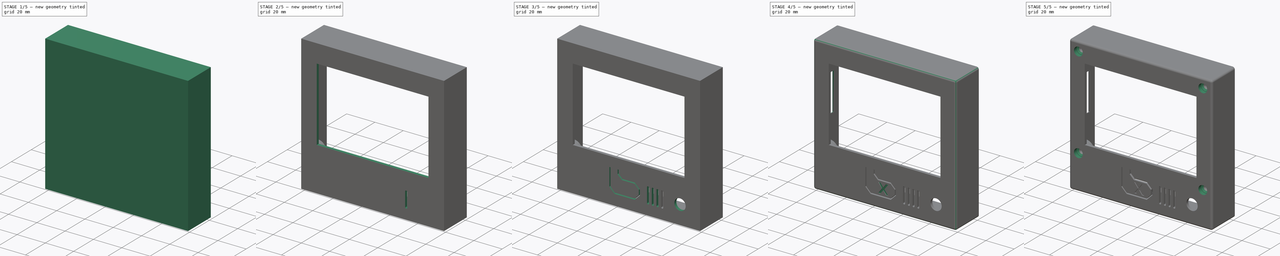
[diagram: build sequence overview — one tinted view per stage of 5, left to right]
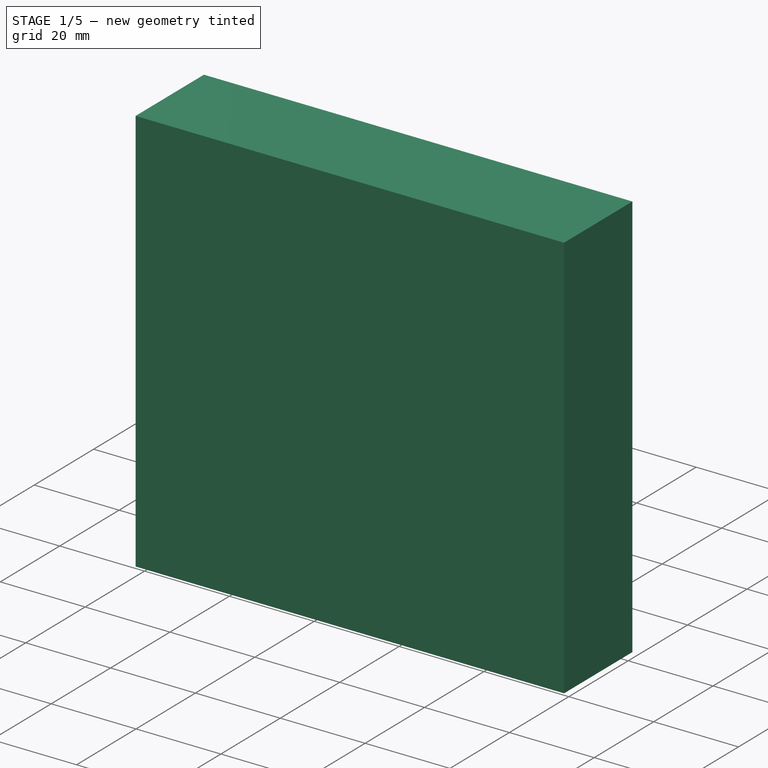
[diagram: stage 1 of 5 — iso view after this stage's code; geometry added in this stage tinted green]
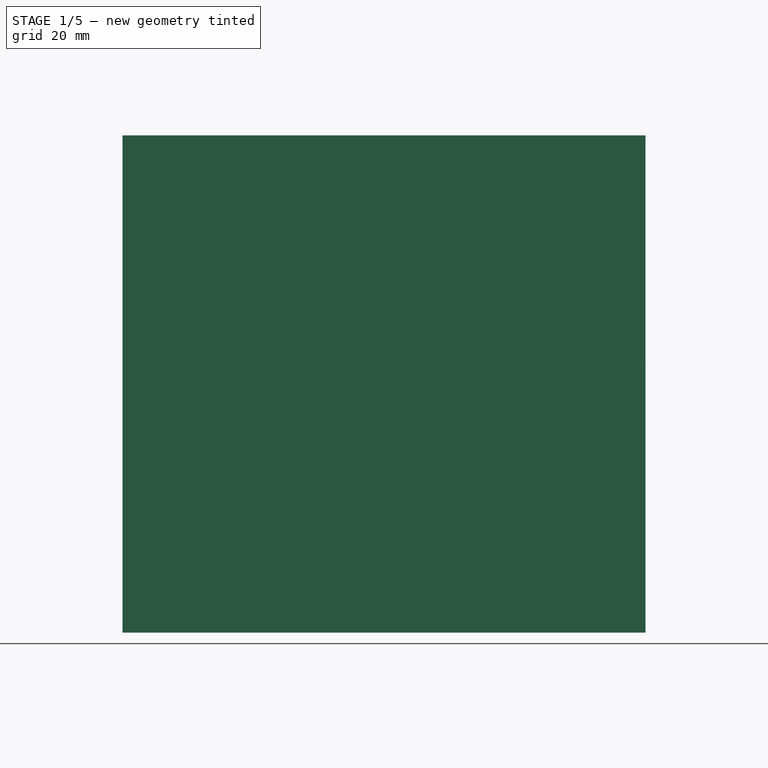
[diagram: stage 1 of 5 — front view after this stage's code; geometry added in this stage tinted green]
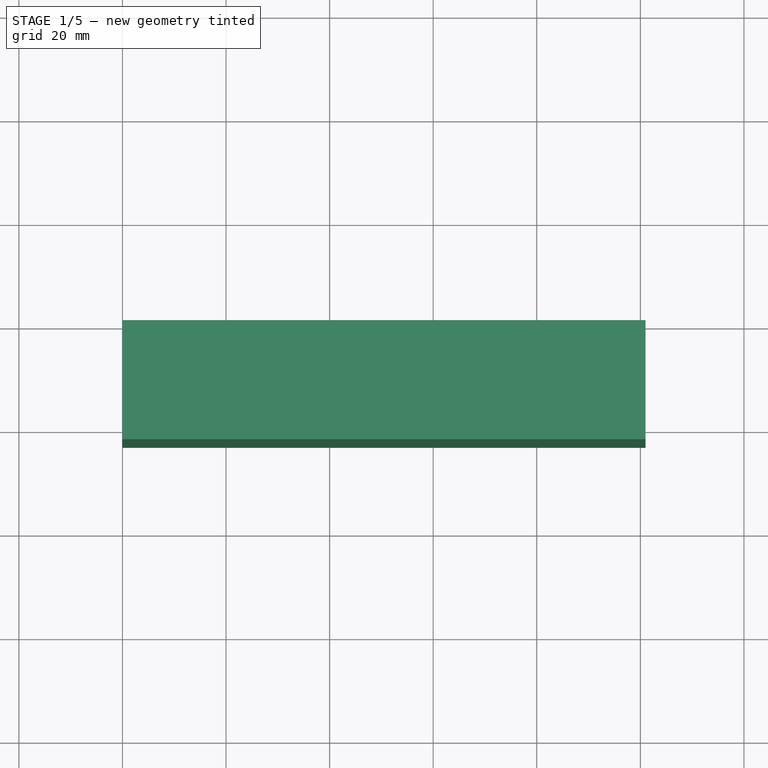
[diagram: stage 1 of 5 — top view after this stage's code; geometry added in this stage tinted green]
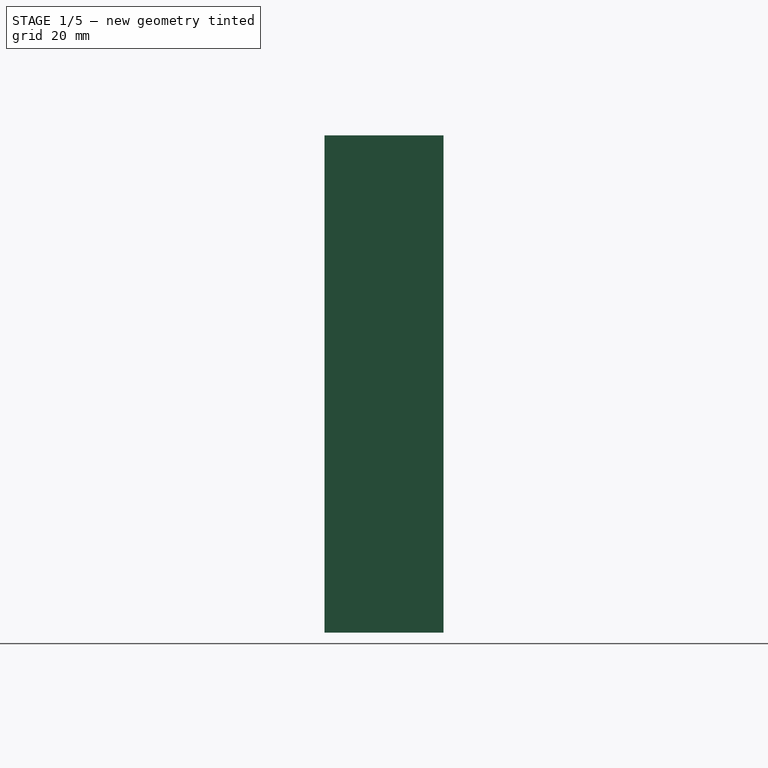
[diagram: stage 1 of 5 — right view after this stage's code; geometry added in this stage tinted green]
FCSTD DOCUMENT  (FreeCAD 0.17R13522 (Git))
Label: Corelia_0_LCD_case
License: All rights reserved
LicenseURL: http://en.wikipedia.org/wiki/All_rights_reserved
objects: Sketcher::SketchObject×14, PartDesign::Pocket×11, PartDesign::Chamfer×4, PartDesign::Pad×3, PartDesign::LinearPattern×1, PartDesign::Fillet×1, PartDesign::Body×1
note: 49 computed .brp shape members not serialized (recipe doc carries the construction recipe); baked Part::Feature solids carry a one-line shape summary decoded from their .brp

FEATURE [Sketcher::SketchObject] Sketch
  MapMode = 5
  Placement = pos=(0,0,0) rot=(1,0,0;1.5708rad)
  Support = -> [XZ_Plane]
  sketch-geometry (4):
    g0: LineSegment StartX=0 StartY=0 StartZ=0 EndX=101 EndY=0 EndZ=0
    g1: LineSegment StartX=101 StartY=0 StartZ=0 EndX=101 EndY=96 EndZ=0
    g2: LineSegment StartX=101 StartY=96 StartZ=0 EndX=0 EndY=96 EndZ=0
    g3: LineSegment StartX=0 StartY=96 StartZ=0 EndX=0 EndY=0 EndZ=0
  constraints (11):
    c: Coincident(g0,g1)
    c: Coincident(g1,g2)
    c: Coincident(g2,g3)
    c: Coincident(g3,g0)
    c: Horizontal(g0)
    c: Horizontal(g2)
    c: Vertical(g1)
    c: Vertical(g3)
    c: Coincident(g0,g-1)
    c: DistanceX(g2,g2) = 101
    c: DistanceY(g3,g3) = 96
FEATURE [PartDesign::Pad] Pad
  Length = 23
  Length2 = 100
  Placement = pos=(0,0,0) rot=(1,0,0;1.5708rad)
  Profile = -> Sketch
  Type = 0
FEATURE [Sketcher::SketchObject] Sketch001
  MapMode = 5
  Placement = pos=(0,0,0) rot=(-1,0,0;1.5708rad)
  Support = -> [Pad]
  sketch-geometry (4):
    g0: LineSegment StartX=2 StartY=-2 StartZ=0 EndX=99 EndY=-2 EndZ=0
    g1: LineSegment StartX=99 StartY=-2 StartZ=0 EndX=99 EndY=-94 EndZ=0
    g2: LineSegment StartX=99 StartY=-94 StartZ=0 EndX=2 EndY=-94 EndZ=0
    g3: LineSegment StartX=2 StartY=-94 StartZ=0 EndX=2 EndY=-2 EndZ=0
  constraints (12):
    c: Coincident(g0,g1)
    c: Coincident(g1,g2)
    c: Coincident(g2,g3)
    c: Coincident(g3,g0)
    c: Horizontal(g0)
    c: Horizontal(g2)
    c: Vertical(g1)
    c: Vertical(g3)
    c: DistanceX(g0,g0) = 97
    c: DistanceY(g3,g3) = 92
    c: DistanceX(g0) = 2
    c: DistanceY(g0) = -2
FEATURE [PartDesign::Pocket] Pocket
  BaseFeature = -> Pad
  Length = 21
  Length2 = 100
  Placement = pos=(0,0,0) rot=(1,0,0;1.5708rad)
  Profile = -> Sketch001
  Type = 0
FEATURE [Sketcher::SketchObject] Sketch002
  MapMode = 5
  Placement = pos=(0,-21,-2e-12) rot=(-1,0,0;1.5708rad)
  Support = -> [Pocket]
  sketch-geometry (8):
    g0: LineSegment [constr] StartX=94.5 StartY=-89.5 StartZ=0 EndX=6.5 EndY=-89.5 EndZ=0
    g1: LineSegment [constr] StartX=6.5 StartY=-89.5 StartZ=0 EndX=6.5 EndY=-24.5 EndZ=0
    g2: LineSegment [constr] StartX=6.5 StartY=-24.5 StartZ=0 EndX=94.5 EndY=-24.5 EndZ=0
    g3: LineSegment [constr] StartX=94.5 StartY=-24.5 StartZ=0 EndX=94.5 EndY=-89.5 EndZ=0
    g4: Circle CenterX=94.5 CenterY=-89.5 CenterZ=0 NormalX=0 NormalY=0 NormalZ=1 AngleXU=0 Radius=6
    g5: Circle CenterX=94.5 CenterY=-24.5 CenterZ=0 NormalX=0 NormalY=0 NormalZ=1 AngleXU=0 Radius=6
    g6: Circle CenterX=6.5 CenterY=-24.5 CenterZ=0 NormalX=0 NormalY=0 NormalZ=1 AngleXU=0 Radius=6
    g7: Circle CenterX=6.5 CenterY=-89.5 CenterZ=0 NormalX=0 NormalY=0 NormalZ=1 AngleXU=0 Radius=6
  constraints (20):
    c: Coincident(g0,g1)
    c: Coincident(g1,g2)
    c: Coincident(g2,g3)
    c: Coincident(g3,g0)
    c: Horizontal(g0)
    c: Horizontal(g2)
    c: Vertical(g1)
    c: Vertical(g3)
    c: DistanceX(g0,g0) = 88
    c: DistanceY(g3,g3) = 65
    c: Coincident(g5,g2)
    c: Equal(g4,g7)
    c: Equal(g7,g6)
    c: Equal(g6,g5)
    c: Radius(g4) = 6
    c: DistanceX(g1) = 6.5
    c: DistanceY(g1) = -24.5
    c: Coincident(g4,g0)
    c: Coincident(g7,g0)
    c: Coincident(g1,g6)
FEATURE [PartDesign::Pad] Pad001
  BaseFeature = -> Pocket
  Length = 5.6
  Length2 = 100
  Placement = pos=(0,0,0) rot=(1,0,0;1.5708rad)
  Profile = -> Sketch002
  Type = 0
FEATURE [Sketcher::SketchObject] Sketch003
  MapMode = 5
  Placement = pos=(0,-15.4,-2e-12) rot=(-1,0,0;1.5708rad)
  Support = -> [Pad001]
  sketch-geometry (8):
    g0: LineSegment [constr] StartX=6.5 StartY=-24.5 StartZ=0 EndX=94.5 EndY=-24.5 EndZ=0
    g1: LineSegment [constr] StartX=94.5 StartY=-24.5 StartZ=0 EndX=94.5 EndY=-89.5 EndZ=0
    g2: LineSegment [constr] StartX=94.5 StartY=-89.5 StartZ=0 EndX=6.5 EndY=-89.5 EndZ=0
    g3: LineSegment [constr] StartX=6.5 StartY=-89.5 StartZ=0 EndX=6.5 EndY=-24.5 EndZ=0
    g4: Circle CenterX=6.5 CenterY=-24.5 CenterZ=0 NormalX=0 NormalY=0 NormalZ=1 AngleXU=0 Radius=1.6
    g5: Circle CenterX=94.5 CenterY=-24.5 CenterZ=0 NormalX=0 NormalY=0 NormalZ=1 AngleXU=0 Radius=1.6
    g6: Circle CenterX=6.5 CenterY=-89.5 CenterZ=0 NormalX=0 NormalY=0 NormalZ=1 AngleXU=0 Radius=1.6
    g7: Circle CenterX=94.5 CenterY=-89.5 CenterZ=0 NormalX=0 NormalY=0 NormalZ=1 AngleXU=0 Radius=1.6
  constraints (20):
    c: Coincident(g0,g1)
    c: Coincident(g1,g2)
    c: Coincident(g2,g3)
    c: Coincident(g3,g0)
    c: Horizontal(g0)
    c: Horizontal(g2)
    c: Vertical(g1)
    c: Vertical(g3)
    c: Coincident(g4,g0)
    c: Coincident(g5,g0)
    c: Coincident(g6,g2)
    c: Coincident(g7,g1)
    c: Equal(g6,g4)
    c: Equal(g4,g5)
    c: Equal(g5,g7)
    c: Radius(g4) = 1.6
    c: DistanceX(g0) = 6.5
    c: DistanceY(g0) = -24.5
    c: DistanceY(g3,g3) = 65
    c: DistanceX(g2,g2) = 88
FEATURE [PartDesign::Pocket] Pocket001
  BaseFeature = -> Pad001
  Length = 7
  Length2 = 100
  Placement = pos=(0,0,0) rot=(1,0,0;1.5708rad)
  Profile = -> Sketch003
  Type = 0
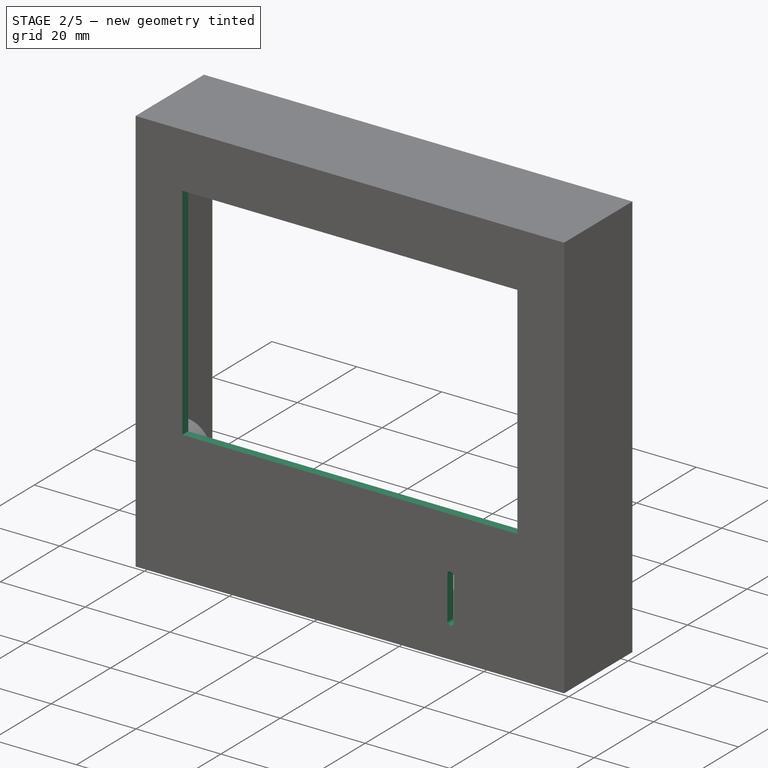
[diagram: stage 2 of 5 — iso view after this stage's code; geometry added in this stage tinted green]
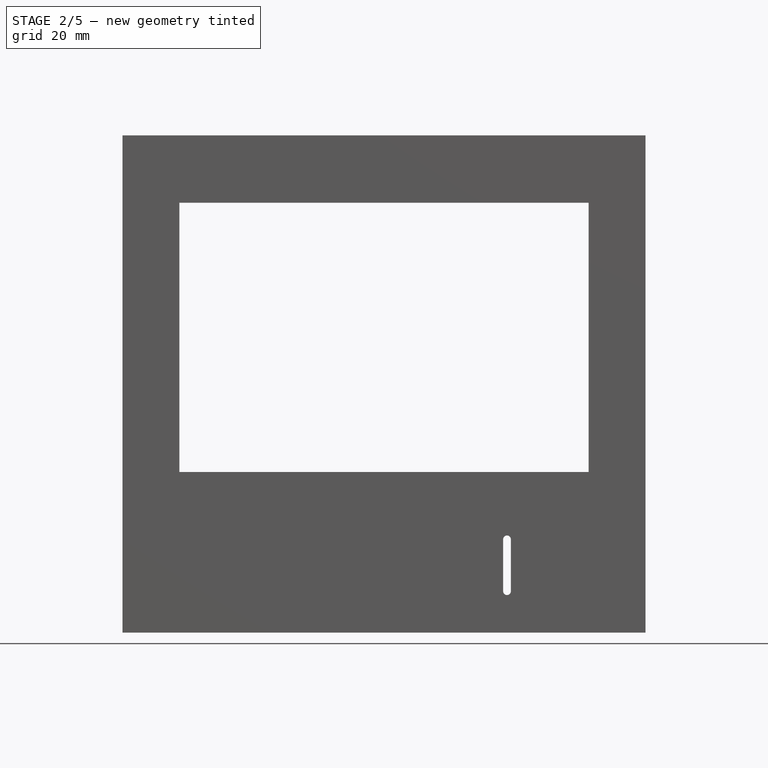
[diagram: stage 2 of 5 — front view after this stage's code; geometry added in this stage tinted green]
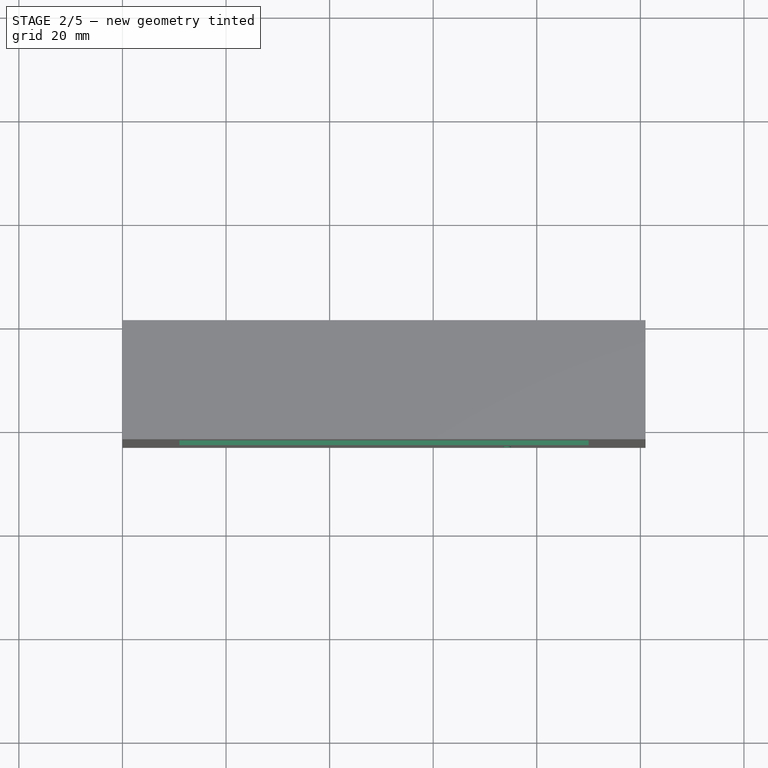
[diagram: stage 2 of 5 — top view after this stage's code; geometry added in this stage tinted green]
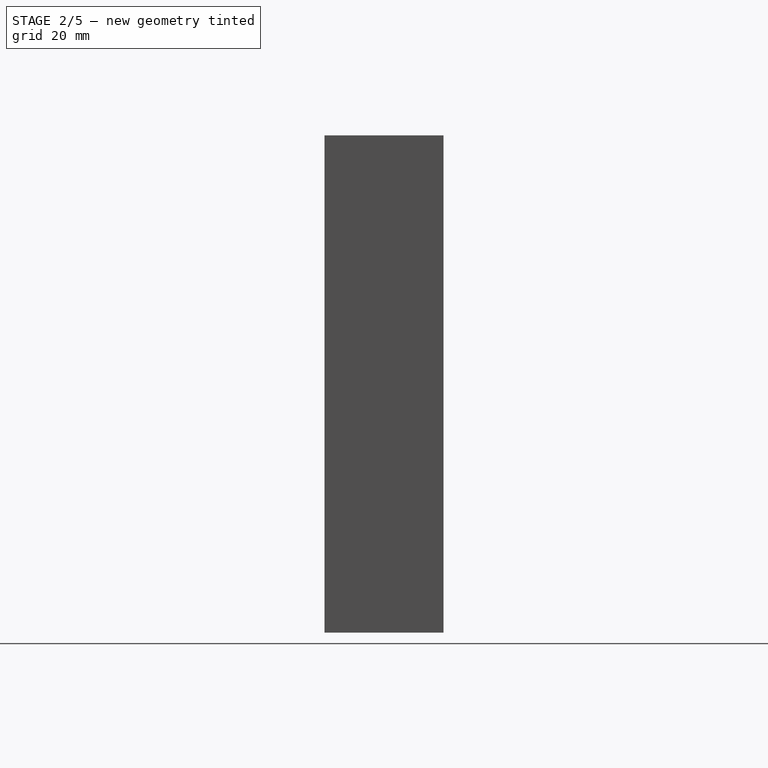
[diagram: stage 2 of 5 — right view after this stage's code; geometry added in this stage tinted green]
FEATURE [Sketcher::SketchObject] Sketch004
  MapMode = 5
  Placement = pos=(0,-15.4,-2e-12) rot=(-1,0,0;1.5708rad)
  Support = -> [Pocket001]
  sketch-geometry (8):
    g0: Circle CenterX=6.5 CenterY=-24.5 CenterZ=0 NormalX=0 NormalY=0 NormalZ=1 AngleXU=0 Radius=1.6
    g1: Circle CenterX=94.5 CenterY=-24.5 CenterZ=0 NormalX=0 NormalY=0 NormalZ=1 AngleXU=0 Radius=1.6
    g2: Circle CenterX=94.5 CenterY=-89.5 CenterZ=0 NormalX=0 NormalY=0 NormalZ=1 AngleXU=0 Radius=1.6
    g3: Circle CenterX=6.5 CenterY=-89.5 CenterZ=0 NormalX=0 NormalY=0 NormalZ=1 AngleXU=0 Radius=1.6
    g4: LineSegment [constr] StartX=6.5 StartY=-24.5 StartZ=0 EndX=6.5 EndY=-89.5 EndZ=0
    g5: LineSegment [constr] StartX=6.5 StartY=-89.5 StartZ=0 EndX=94.5 EndY=-89.5 EndZ=0
    g6: LineSegment [constr] StartX=94.5 StartY=-89.5 StartZ=0 EndX=94.5 EndY=-24.5 EndZ=0
    g7: LineSegment [constr] StartX=94.5 StartY=-24.5 StartZ=0 EndX=6.5 EndY=-24.5 EndZ=0
  constraints (20):
    c: Equal(g0,g1)
    c: Equal(g1,g2)
    c: Radius(g0) = 1.6
    c: Equal(g0,g3)
    c: DistanceX(g0) = 6.5
    c: DistanceY(g0) = -24.5
    c: Coincident(g4,g0)
    c: Coincident(g4,g3)
    c: Vertical(g4)
    c: Coincident(g5,g3)
    c: Coincident(g5,g2)
    c: Horizontal(g5)
    c: Coincident(g6,g2)
    c: Coincident(g6,g1)
    c: Vertical(g6)
    c: Coincident(g7,g1)
    c: Coincident(g7,g0)
    c: Horizontal(g7)
    c: DistanceY(g4,g4) = 65
    c: DistanceX(g5,g5) = 88
FEATURE [PartDesign::Pocket] Pocket002
  BaseFeature = -> Pocket001
  Length = 5
  Length2 = 100
  Placement = pos=(0,0,0) rot=(1,0,0;1.5708rad)
  Profile = -> Sketch004
  Type = 0
FEATURE [Sketcher::SketchObject] Sketch005
  MapMode = 5
  Placement = pos=(0,-23,-2e-12) rot=(1,0,0;1.5708rad)
  Support = -> [Pocket002]
  sketch-geometry (4):
    g0: LineSegment StartX=11 StartY=83 StartZ=0 EndX=90 EndY=83 EndZ=0
    g1: LineSegment StartX=90 StartY=83 StartZ=0 EndX=90 EndY=31 EndZ=0
    g2: LineSegment StartX=90 StartY=31 StartZ=0 EndX=11 EndY=31 EndZ=0
    g3: LineSegment StartX=11 StartY=31 StartZ=0 EndX=11 EndY=83 EndZ=0
  constraints (12):
    c: Coincident(g0,g1)
    c: Coincident(g1,g2)
    c: Coincident(g2,g3)
    c: Coincident(g3,g0)
    c: Horizontal(g0)
    c: Horizontal(g2)
    c: Vertical(g1)
    c: Vertical(g3)
    c: DistanceX(g2) = 11
    c: DistanceY(g2) = 31
    c: DistanceX(g0,g0) = 79
    c: DistanceY(g3,g3) = 52
FEATURE [PartDesign::Pocket] Pocket003
  BaseFeature = -> Pocket002
  Length = 5
  Length2 = 100
  Placement = pos=(0,0,0) rot=(1,0,0;1.5708rad)
  Profile = -> Sketch005
  Type = 1
FEATURE [Sketcher::SketchObject] Sketch006
  MapMode = 5
  Placement = pos=(0,-21,-2e-12) rot=(-1,0,0;1.5708rad)
  Support = -> [Pocket003]
  sketch-geometry (1):
    g0: Circle CenterX=53 CenterY=-13.15 CenterZ=0 NormalX=0 NormalY=0 NormalZ=1 AngleXU=0 Radius=3
  constraints (3):
    c: Radius(g0) = 3
    c: DistanceX(g0) = 53
    c: DistanceY(g0) = -13.15
FEATURE [PartDesign::Pad] Pad002
  BaseFeature = -> Pocket003
  Length = 6
  Length2 = 100
  Placement = pos=(0,0,0) rot=(1,0,0;1.5708rad)
  Profile = -> Sketch006
  Type = 0
FEATURE [Sketcher::SketchObject] Sketch007
  MapMode = 5
  Placement = pos=(0,-21,-2e-12) rot=(-1,0,0;1.5708rad)
  Support = -> [Pad002]
  sketch-geometry (4):
    g0: ArcOfCircle CenterX=74.25 CenterY=-8 CenterZ=0 NormalX=0 NormalY=0 NormalZ=1 AngleXU=0 Radius=0.75 StartAngle=0 EndAngle=3.14159
    g1: ArcOfCircle CenterX=74.25 CenterY=-18 CenterZ=0 NormalX=0 NormalY=0 NormalZ=1 AngleXU=0 Radius=0.75 StartAngle=3.14159 EndAngle=6.28319
    g2: LineSegment StartX=73.5 StartY=-8 StartZ=0 EndX=73.5 EndY=-18 EndZ=0
    g3: LineSegment StartX=75 StartY=-8 StartZ=0 EndX=75 EndY=-18 EndZ=0
  constraints (10):
    c: Tangent(g0,g3) = 1.5708
    c: Tangent(g0,g2) = -1.5708
    c: Tangent(g2,g1) = -1.5708
    c: Tangent(g3,g1) = 1.5708
    c: Vertical(g2)
    c: Equal(g0,g1)
    c: DistanceY(g2,g2) = 10
    c: Radius(g0) = 0.75
    c: DistanceY(g0) = -8
    c: DistanceX(g0) = 75
FEATURE [PartDesign::Pocket] Pocket004
  BaseFeature = -> Pad002
  Length = 5
  Length2 = 100
  Placement = pos=(0,0,0) rot=(1,0,0;1.5708rad)
  Profile = -> Sketch007
  Type = 1
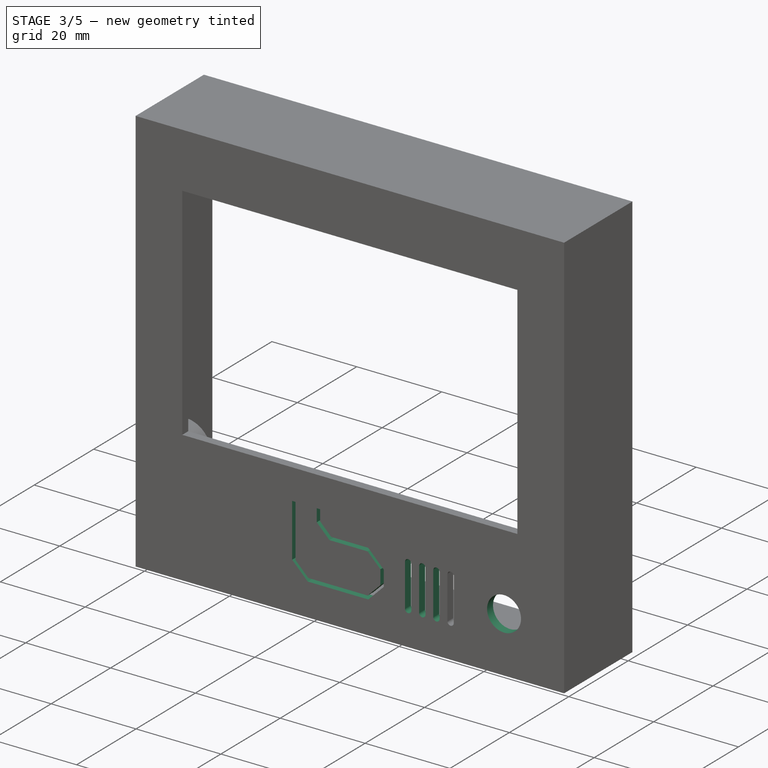
[diagram: stage 3 of 5 — iso view after this stage's code; geometry added in this stage tinted green]
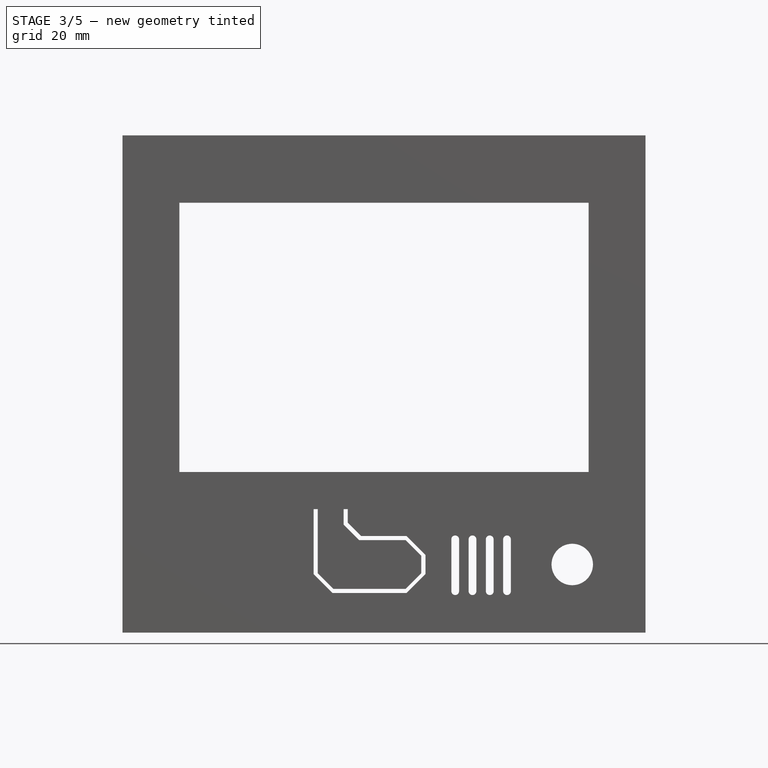
[diagram: stage 3 of 5 — front view after this stage's code; geometry added in this stage tinted green]
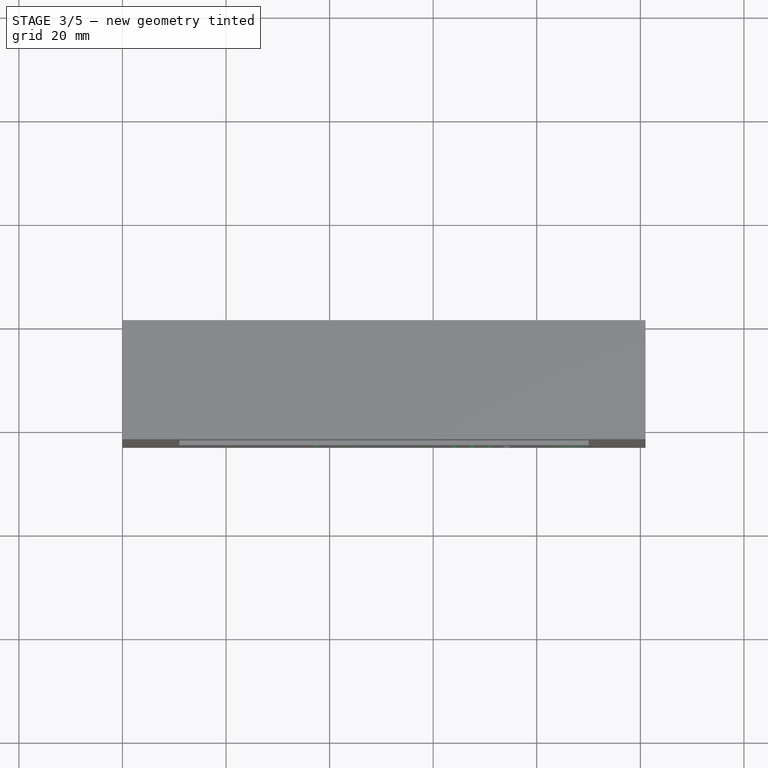
[diagram: stage 3 of 5 — top view after this stage's code; geometry added in this stage tinted green]
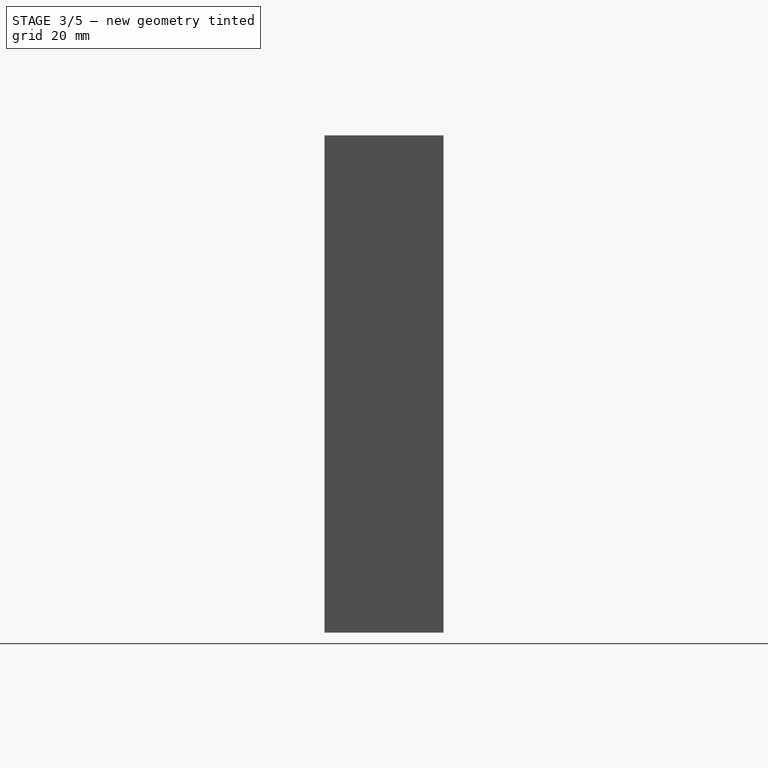
[diagram: stage 3 of 5 — right view after this stage's code; geometry added in this stage tinted green]
FEATURE [PartDesign::LinearPattern] LinearPattern
  BaseFeature = -> Pocket004
  Direction = -> Sketch007 [H_Axis]
  Length = 10
  Occurrences = 4
  Originals = -> [Pocket004]
  Placement = pos=(0,0,0) rot=(1,0,0;1.5708rad)
  Reversed = true
FEATURE [Sketcher::SketchObject] Sketch008
  MapMode = 5
  Placement = pos=(0,-21,-2e-12) rot=(-1,0,0;1.5708rad)
  Support = -> [LinearPattern]
  sketch-geometry (1):
    g0: Circle CenterX=86.85 CenterY=-13.15 CenterZ=0 NormalX=0 NormalY=0 NormalZ=1 AngleXU=0 Radius=4
  constraints (3):
    c: Radius(g0) = 4
    c: DistanceX(g0) = 86.85
    c: DistanceY(g0) = -13.15
FEATURE [PartDesign::Pocket] Pocket005
  BaseFeature = -> LinearPattern
  Length = 5
  Length2 = 100
  Placement = pos=(0,0,0) rot=(1,0,0;1.5708rad)
  Profile = -> Sketch008
  Type = 1
FEATURE [Sketcher::SketchObject] Sketch009
  ExternalGeometry = -> [Pocket005]
  MapMode = 5
  Placement = pos=(0,-21,-2e-12) rot=(-1,0,0;1.5708rad)
  Support = -> [Pocket005]
  sketch-geometry (22):
    g0: LineSegment StartX=57.7016 StartY=-14.8516 StartZ=0 EndX=57.7016 EndY=-11.4484 EndZ=0
    g1: LineSegment StartX=57.7016 StartY=-11.4484 StartZ=0 EndX=54.7016 EndY=-8.44844 EndZ=0
    g2: LineSegment StartX=54.7016 StartY=-8.44844 StartZ=0 EndX=40.7016 EndY=-8.44844 EndZ=0
    g3: LineSegment StartX=40.7016 StartY=-8.44844 StartZ=0 EndX=37.7016 EndY=-11.4484 EndZ=0
    g4: LineSegment StartX=37.7016 StartY=-11.4484 StartZ=0 EndX=37.7016 EndY=-23.8516 EndZ=0
    g5: LineSegment StartX=42.7016 StartY=-23.8516 StartZ=0 EndX=42.7016 EndY=-20.8516 EndZ=0
    g6: LineSegment StartX=42.7016 StartY=-20.8516 StartZ=0 EndX=45.7016 EndY=-17.8516 EndZ=0
    g7: LineSegment StartX=45.7016 StartY=-17.8516 StartZ=0 EndX=54.7016 EndY=-17.8516 EndZ=0
    g8: LineSegment StartX=54.7016 StartY=-17.8516 StartZ=0 EndX=57.7016 EndY=-14.8516 EndZ=0
    g9: Circle [constr] CenterX=53 CenterY=-13.15 CenterZ=0 NormalX=0 NormalY=0 NormalZ=1 AngleXU=0 Radius=5
    g10: LineSegment StartX=37.7016 StartY=-23.8516 StartZ=0 EndX=36.9016 EndY=-23.8516 EndZ=0
    g11: LineSegment StartX=36.9016 StartY=-23.8516 StartZ=0 EndX=36.9016 EndY=-11.3184 EndZ=0
    g12: LineSegment StartX=36.9016 StartY=-11.3184 StartZ=0 EndX=40.5716 EndY=-7.64844 EndZ=0
    g13: LineSegment StartX=40.5716 StartY=-7.64844 StartZ=0 EndX=54.8365 EndY=-7.64844 EndZ=0
    g14: LineSegment StartX=54.8365 StartY=-7.64844 StartZ=0 EndX=58.5016 EndY=-11.3135 EndZ=0
    g15: LineSegment StartX=58.5016 StartY=-11.3135 StartZ=0 EndX=58.5016 EndY=-14.9865 EndZ=0
    g16: LineSegment StartX=58.5016 StartY=-14.9865 StartZ=0 EndX=54.8365 EndY=-18.6516 EndZ=0
    g17: LineSegment StartX=54.8365 StartY=-18.6516 StartZ=0 EndX=46.1016 EndY=-18.6516 EndZ=0
    g18: LineSegment StartX=46.1016 StartY=-18.6516 StartZ=0 EndX=43.5016 EndY=-21.2516 EndZ=0
    g19: LineSegment StartX=43.5016 StartY=-21.2516 StartZ=0 EndX=43.5016 EndY=-23.8516 EndZ=0
    g20: LineSegment StartX=43.5016 StartY=-23.8516 StartZ=0 EndX=42.7016 EndY=-23.8516 EndZ=0
    g21: Circle [constr] CenterX=53 CenterY=-13.15 CenterZ=0 NormalX=0 NormalY=0 NormalZ=1 AngleXU=0 Radius=5.8
  constraints (66):
    c: Vertical(g0)
    c: Coincident(g0,g1)
    c: Coincident(g1,g2)
    c: Horizontal(g2)
    c: Coincident(g2,g3)
    c: Coincident(g3,g4)
    c: Vertical(g4)
    c: Coincident(g5,g6)
    c: Coincident(g6,g7)
    c: Coincident(g7,g8)
    c: Coincident(g8,g0)
    c: Vertical(g5)
    c: Horizontal(g7)
    c: Equal(g8,g1)
    c: Equal(g1,g6)
    c: Equal(g6,g3)
    c: Angle(g5,g6) = 2.35619
    c: Angle(g8,g7) = 2.35619
    c: Angle(g2,g1) = 2.35619
    c: Angle(g3,g2) = 2.35619
    c: DistanceX(g4,g5) = 5
    c: DistanceY(g5,g5) = 3
    c: DistanceX(g5,g6) = 3
    c: DistanceX(g3,g0) = 20
    c: Coincident(g9,g-3)
    c: PointOnObject(g7,g9)
    c: Radius(g9) = 5
    c: PointOnObject(g1,g9)
    c: PointOnObject(g0,g9)
    c: Coincident(g4,g10)
    c: Horizontal(g10)
    c: Coincident(g10,g11)
    c: Vertical(g11)
    c: Coincident(g11,g12)
    c: Coincident(g12,g13)
    c: Horizontal(g13)
    c: Coincident(g13,g14)
    c: Coincident(g14,g15)
    c: Vertical(g15)
    c: Coincident(g15,g16)
    c: Coincident(g16,g17)
    c: Horizontal(g17)
    c: Coincident(g17,g18)
    c: Coincident(g18,g19)
    c: Coincident(g19,g20)
    c: Coincident(g20,g5)
    c: Horizontal(g20)
    c: Vertical(g19)
    c: Equal(g10,g20)
    c: DistanceX(g10,g10) = 0.8
    c: DistanceY(g17,g6) = 0.8
    c: DistanceX(g0,g15) = 0.8
    c: DistanceY(g1,g13) = 0.8
    c: Parallel(g3,g12)
    c: Parallel(g1,g14)
    c: Parallel(g16,g8)
    c: Parallel(g18,g6)
    c: Coincident(g21,g9)
    c: Radius(g21) = 5.8
    c: PointOnObject(g16,g21)
    c: PointOnObject(g15,g21)
    c: PointOnObject(g14,g21)
    c: PointOnObject(g13,g21)
    c: DistanceY(g19,g19) = 2.6
    c: DistanceY(g11,g12) = 3.67
    c: PointOnObject(g4,g20)
FEATURE [PartDesign::Pocket] Pocket006
  BaseFeature = -> Pocket005
  Length = 5
  Length2 = 100
  Placement = pos=(0,0,0) rot=(1,0,0;1.5708rad)
  Profile = -> Sketch009
  Type = 1
FEATURE [Sketcher::SketchObject] Sketch010
  MapMode = 5
  Placement = pos=(0,-21,-2e-12) rot=(-1,0,0;1.5708rad)
  Support = -> [Pocket006]
  sketch-geometry (11):
    g0: LineSegment StartX=42.7016 StartY=-23.8516 StartZ=0 EndX=37.7016 EndY=-23.8516 EndZ=0
    g1: LineSegment StartX=37.7016 StartY=-11.4484 StartZ=0 EndX=40.7329 EndY=-8.47023 EndZ=0
    g2: LineSegment StartX=54.7016 StartY=-8.47023 StartZ=0 EndX=57.7016 EndY=-11.4484 EndZ=0
    g3: LineSegment StartX=57.7016 StartY=-14.8516 StartZ=0 EndX=54.7016 EndY=-17.8516 EndZ=0
    g4: LineSegment StartX=45.7016 StartY=-17.8516 StartZ=0 EndX=42.7016 EndY=-20.8516 EndZ=0
    g5: LineSegment StartX=37.7016 StartY=-23.8516 StartZ=0 EndX=37.7016 EndY=-11.4484 EndZ=0
    g6: LineSegment StartX=40.7329 StartY=-8.47023 StartZ=0 EndX=54.7016 EndY=-8.47023 EndZ=0
    g7: LineSegment StartX=54.7016 StartY=-17.8516 StartZ=0 EndX=45.7016 EndY=-17.8516 EndZ=0
    g8: LineSegment StartX=42.7016 StartY=-20.8516 StartZ=0 EndX=42.7016 EndY=-23.8516 EndZ=0
    g9: Circle CenterX=53 CenterY=-13.15 CenterZ=0 NormalX=0 NormalY=0 NormalZ=1 AngleXU=0 Radius=3
    g10: LineSegment StartX=57.7016 StartY=-11.4484 StartZ=0 EndX=57.7016 EndY=-14.8516 EndZ=0
  constraints (16):
    c: Coincident(g5,g0)
    c: Coincident(g5,g1)
    c: Vertical(g5)
    c: Coincident(g6,g1)
    c: Coincident(g6,g2)
    c: Horizontal(g6)
    c: Coincident(g7,g3)
    c: Coincident(g7,g4)
    c: Horizontal(g7)
    c: Coincident(g8,g4)
    c: Coincident(g8,g0)
    c: Vertical(g8)
    c: Coincident(g10,g3)
    c: Vertical(g10)
    c: Radius(g9) = 3
    c: Coincident(g2,g10)
FEATURE [PartDesign::Pocket] Pocket007
  BaseFeature = -> Pocket006
  Length = 0.5
  Length2 = 100
  Placement = pos=(0,0,0) rot=(1,0,0;1.5708rad)
  Profile = -> Sketch010
  Type = 0
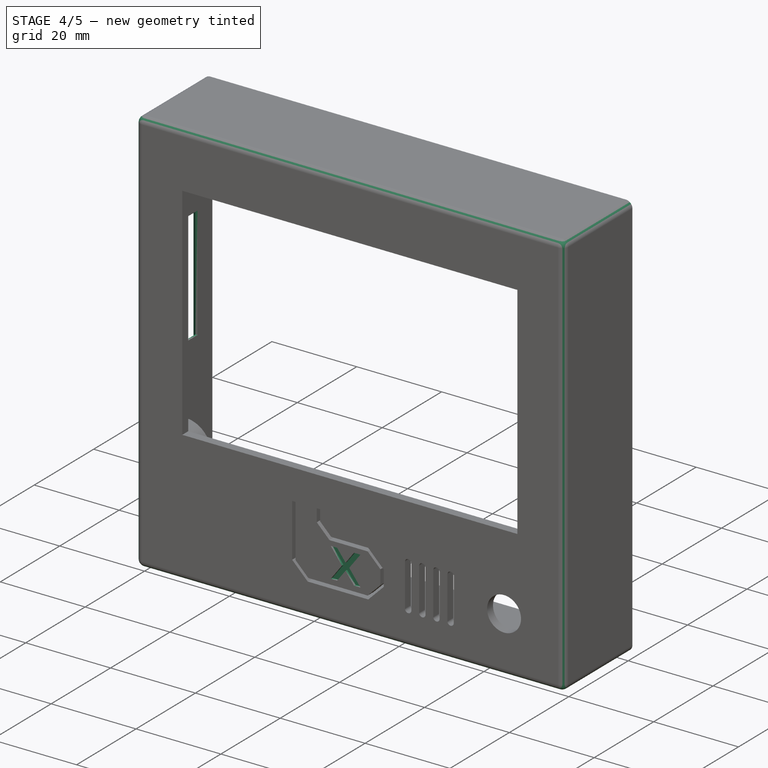
[diagram: stage 4 of 5 — iso view after this stage's code; geometry added in this stage tinted green]
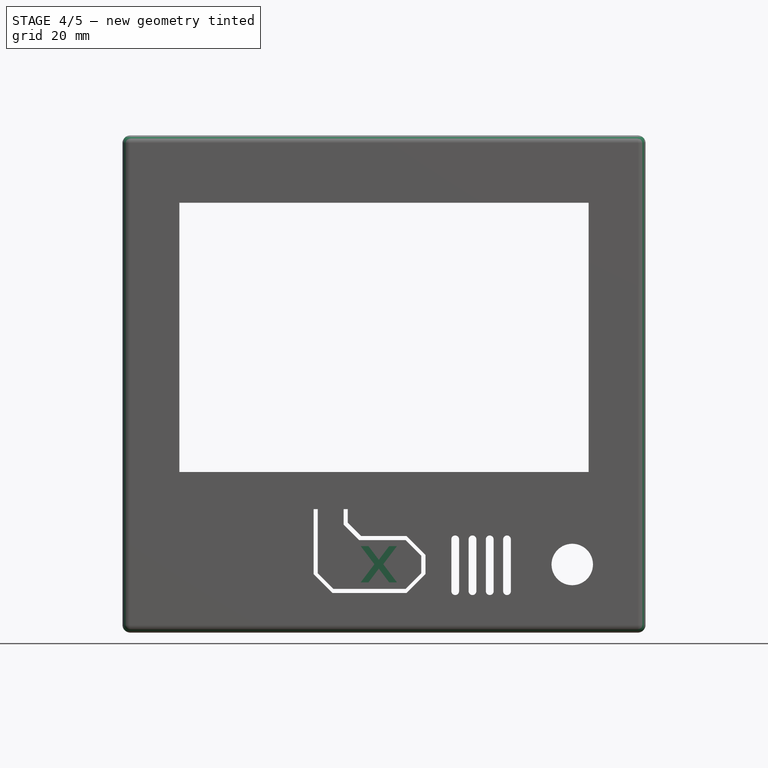
[diagram: stage 4 of 5 — front view after this stage's code; geometry added in this stage tinted green]
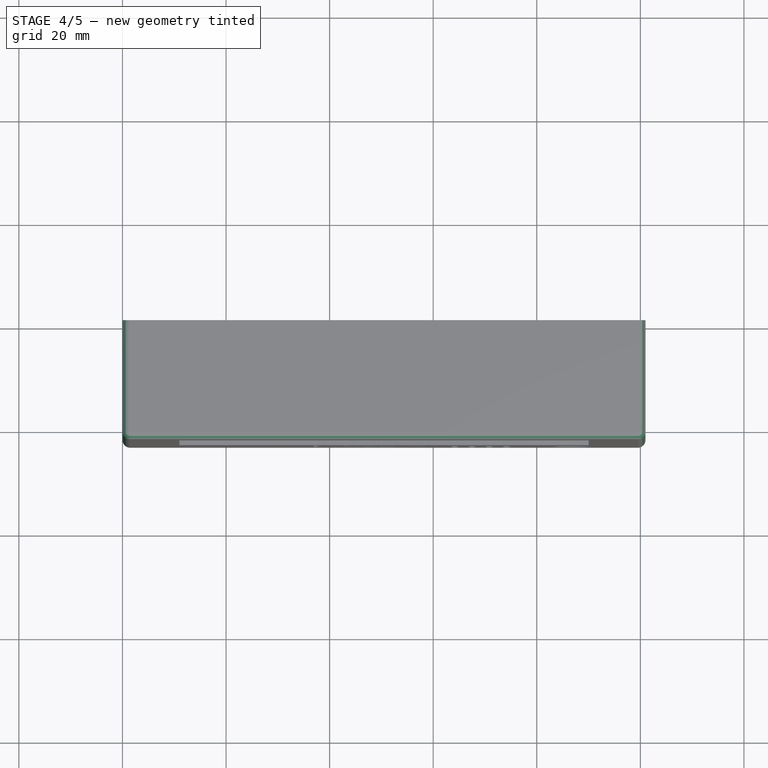
[diagram: stage 4 of 5 — top view after this stage's code; geometry added in this stage tinted green]
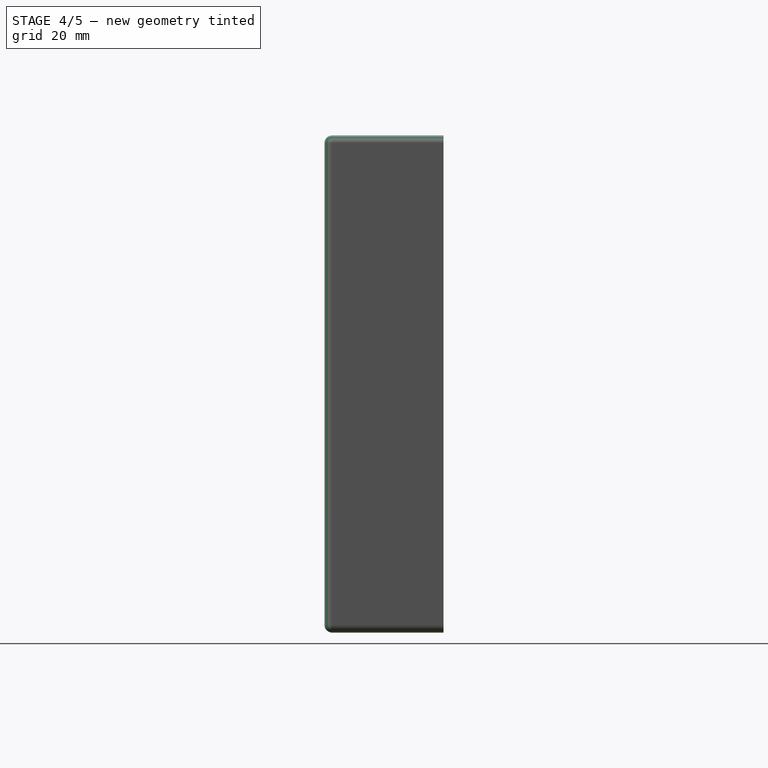
[diagram: stage 4 of 5 — right view after this stage's code; geometry added in this stage tinted green]
FEATURE [Sketcher::SketchObject] Sketch011
  MapMode = 5
  Placement = pos=(0,-23,-2e-12) rot=(1,0,0;1.5708rad)
  Support = -> [Pocket007]
  sketch-geometry (15):
    g0: LineSegment StartX=46 StartY=16.7 StartZ=0 EndX=47.5 EndY=16.7 EndZ=0
    g1: LineSegment StartX=47.5 StartY=16.7 StartZ=0 EndX=49.5 EndY=14.0542 EndZ=0
    g2: LineSegment StartX=49.5 StartY=14.0542 StartZ=0 EndX=51.5 EndY=16.7 EndZ=0
    g3: LineSegment StartX=51.5 StartY=16.7 StartZ=0 EndX=53 EndY=16.7 EndZ=0
    g4: LineSegment StartX=53 StartY=16.7 StartZ=0 EndX=50.3542 EndY=13.2 EndZ=0
    g5: LineSegment StartX=50.3542 StartY=13.2 StartZ=0 EndX=53 EndY=9.7 EndZ=0
    g6: LineSegment StartX=53 StartY=9.7 StartZ=0 EndX=51.5 EndY=9.7 EndZ=0
    g7: LineSegment StartX=51.5 StartY=9.7 StartZ=0 EndX=49.5 EndY=12.3458 EndZ=0
    g8: LineSegment StartX=49.5 StartY=12.3458 StartZ=0 EndX=47.5 EndY=9.7 EndZ=0
    g9: LineSegment StartX=47.5 StartY=9.7 StartZ=0 EndX=46 EndY=9.7 EndZ=0
    g10: LineSegment StartX=46 StartY=9.7 StartZ=0 EndX=48.6458 EndY=13.2 EndZ=0
    g11: LineSegment StartX=48.6458 StartY=13.2 StartZ=0 EndX=46 EndY=16.7 EndZ=0
    g12: LineSegment [constr] StartX=49.5 StartY=14.0542 StartZ=0 EndX=49.5 EndY=12.3458 EndZ=0
    g13: LineSegment [constr] StartX=48.6458 StartY=13.2 StartZ=0 EndX=50.3542 EndY=13.2 EndZ=0
    g14: LineSegment [constr] StartX=53 StartY=16.7 StartZ=0 EndX=53 EndY=9.7 EndZ=0
  constraints (42):
    c: Horizontal(g0)
    c: Coincident(g0,g1)
    c: Coincident(g1,g2)
    c: Coincident(g2,g3)
    c: Horizontal(g3)
    c: Coincident(g3,g4)
    c: Coincident(g4,g5)
    c: Coincident(g5,g6)
    c: Coincident(g6,g7)
    c: Coincident(g7,g8)
    c: Coincident(g8,g9)
    c: Horizontal(g9)
    c: Coincident(g9,g10)
    c: Coincident(g10,g11)
    c: Coincident(g11,g0)
    c: Horizontal(g6)
    c: PointOnObject(g6,g9)
    c: PointOnObject(g2,g0)
    c: Equal(g1,g2)
    c: Equal(g2,g7)
    c: Equal(g7,g8)
    c: Equal(g11,g4)
    c: Equal(g4,g5)
    c: Equal(g5,g10)
    c: Equal(g0,g3)
    c: Equal(g3,g9)
    c: Equal(g9,g6)
    c: Coincident(g12,g1)
    c: Coincident(g12,g7)
    c: Vertical(g12)
    c: Coincident(g13,g10)
    c: Coincident(g13,g4)
    c: DistanceX(g9,g8) = 1.5
    c: Equal(g13,g12)
    c: Parallel(g2,g4)
    c: Coincident(g14,g3)
    c: Coincident(g14,g5)
    c: Vertical(g14)
    c: DistanceX(g9,g5) = 7
    c: DistanceX(g9) = 46
    c: DistanceY(g9) = 9.7
    c: DistanceY(g14,g14) = 7
FEATURE [PartDesign::Pocket] Pocket008
  BaseFeature = -> Pocket007
  Length = 0.5
  Length2 = 100
  Placement = pos=(0,0,0) rot=(1,0,0;1.5708rad)
  Profile = -> Sketch011
  Type = 0
FEATURE [Sketcher::SketchObject] Sketch012
  MapMode = 5
  Placement = pos=(0,0,0) rot=(0.707107,0,-0.707107;3.14159rad)
  Support = -> [Pocket008]
  sketch-geometry (4):
    g0: LineSegment StartX=-69.5 StartY=5 StartZ=0 EndX=-43 EndY=5 EndZ=0
    g1: LineSegment StartX=-43 StartY=5 StartZ=0 EndX=-43 EndY=8.3 EndZ=0
    g2: LineSegment StartX=-43 StartY=8.3 StartZ=0 EndX=-69.5 EndY=8.3 EndZ=0
    g3: LineSegment StartX=-69.5 StartY=8.3 StartZ=0 EndX=-69.5 EndY=5 EndZ=0
  constraints (12):
    c: Coincident(g0,g1)
    c: Coincident(g1,g2)
    c: Coincident(g2,g3)
    c: Coincident(g3,g0)
    c: Horizontal(g0)
    c: Horizontal(g2)
    c: Vertical(g1)
    c: Vertical(g3)
    c: DistanceY(g3,g3) = 3.3
    c: DistanceX(g0,g-1) = 69.5
    c: DistanceY(g0) = 5
    c: DistanceX(g2,g2) = 26.5
FEATURE [PartDesign::Pocket] Pocket009
  BaseFeature = -> Pocket008
  Length = 3
  Length2 = 100
  Placement = pos=(0,0,0) rot=(1,0,0;1.5708rad)
  Profile = -> Sketch012
  Type = 0
FEATURE [PartDesign::Chamfer] Chamfer
  Base = -> Pocket009 [Edge9,Edge8,Edge10,Edge11]
  BaseFeature = -> Pocket009
  Placement = pos=(0,0,0) rot=(1,0,0;1.5708rad)
  Size = 1.5
FEATURE [PartDesign::Fillet] Fillet
  Base = -> Chamfer [Edge17,Edge81,Edge5,Edge8,Edge7,Edge26,Edge27,Edge19]
  BaseFeature = -> Chamfer
  Placement = pos=(0,0,0) rot=(1,0,0;1.5708rad)
  Radius = 1.5
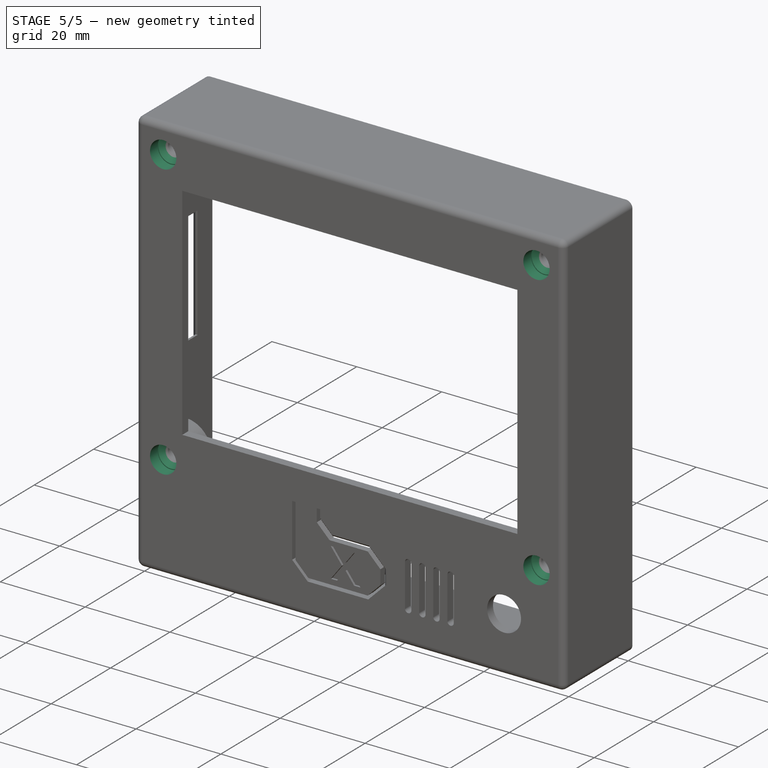
[diagram: stage 5 of 5 — iso view after this stage's code; geometry added in this stage tinted green]
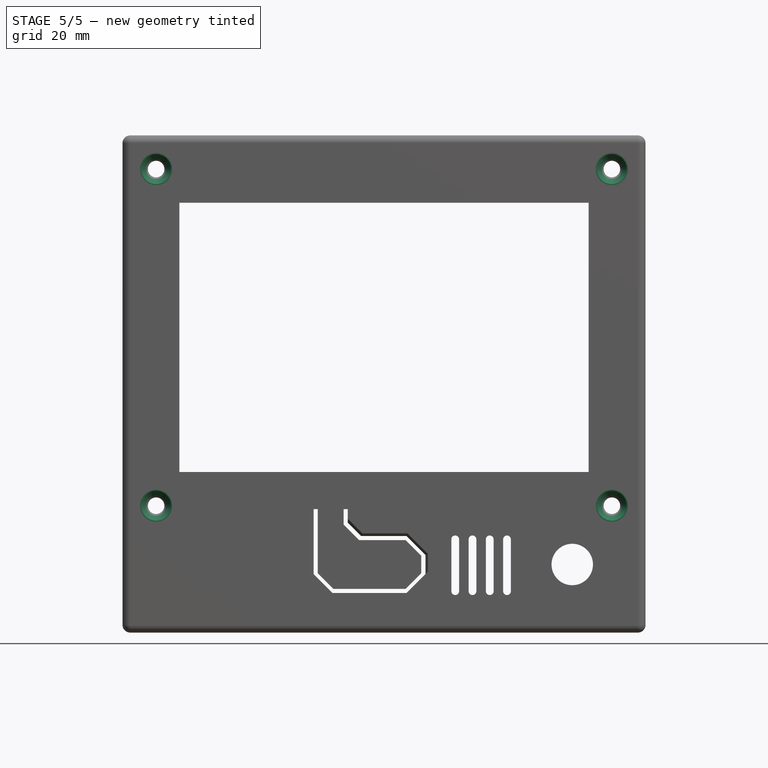
[diagram: stage 5 of 5 — front view after this stage's code; geometry added in this stage tinted green]
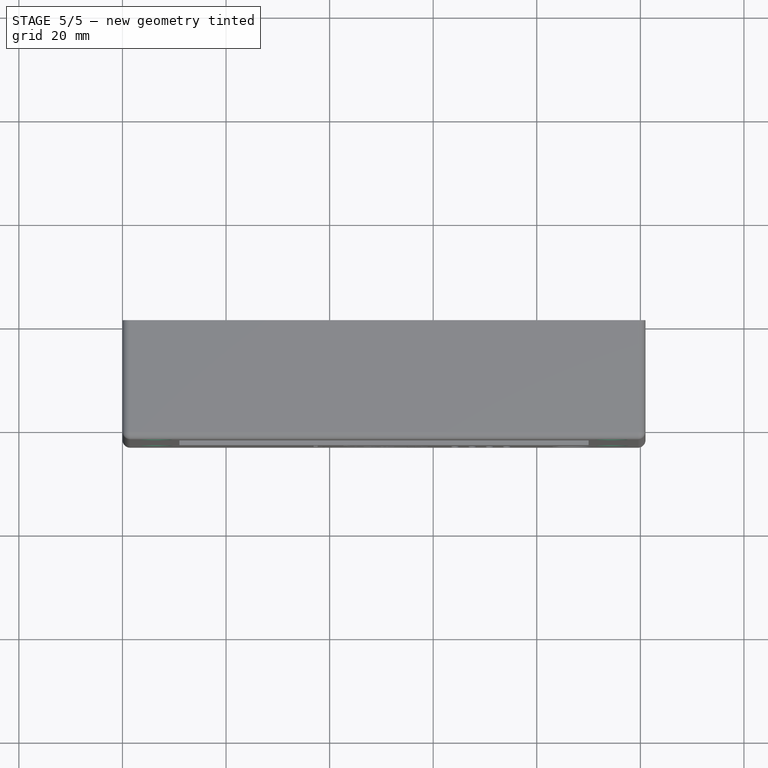
[diagram: stage 5 of 5 — top view after this stage's code; geometry added in this stage tinted green]
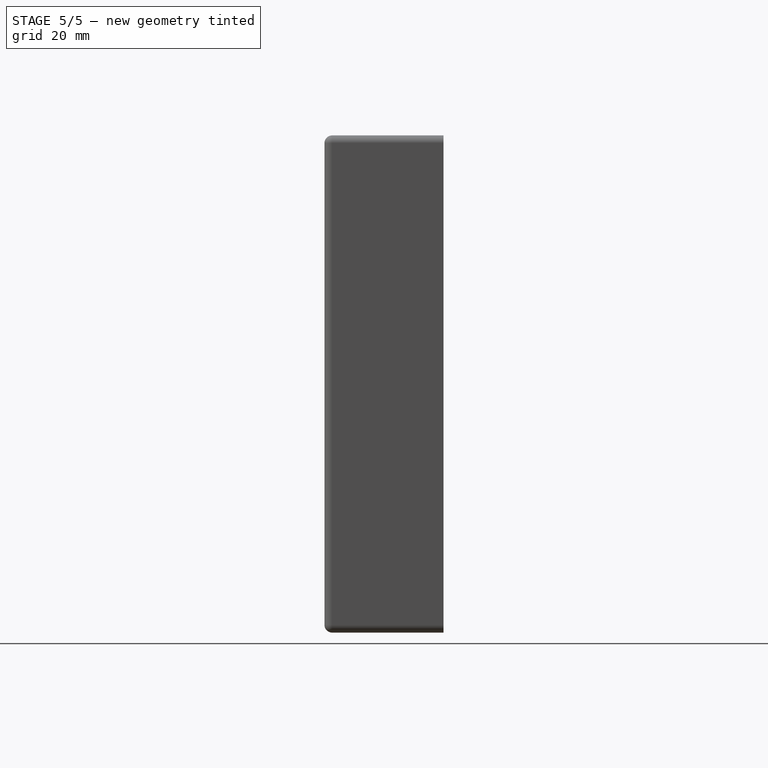
[diagram: stage 5 of 5 — right view after this stage's code; geometry added in this stage tinted green]
FEATURE [PartDesign::Chamfer] Chamfer001
  Base = -> Fillet [Edge128,Edge129,Edge131,Edge130]
  BaseFeature = -> Fillet
  Placement = pos=(0,0,0) rot=(1,0,0;1.5708rad)
  Size = 0.5
FEATURE [PartDesign::Chamfer] Chamfer002
  Base = -> Chamfer001 [Edge214]
  BaseFeature = -> Chamfer001
  Placement = pos=(0,0,0) rot=(1,0,0;1.5708rad)
  Size = 0.49
FEATURE [Sketcher::SketchObject] Sketch013
  MapMode = 5
  Placement = pos=(0,-23,-2e-12) rot=(1,0,0;1.5708rad)
  Support = -> [Chamfer002]
  sketch-geometry (8):
    g0: Circle CenterX=94.5 CenterY=89.5 CenterZ=0 NormalX=0 NormalY=0 NormalZ=1 AngleXU=0 Radius=3.1
    g1: Circle CenterX=6.5 CenterY=89.5 CenterZ=0 NormalX=0 NormalY=0 NormalZ=1 AngleXU=0 Radius=3.1
    g2: Circle CenterX=6.5 CenterY=24.5 CenterZ=0 NormalX=0 NormalY=0 NormalZ=1 AngleXU=0 Radius=3.1
    g3: Circle CenterX=94.5 CenterY=24.5 CenterZ=0 NormalX=0 NormalY=0 NormalZ=1 AngleXU=0 Radius=3.1
    g4: LineSegment [constr] StartX=6.5 StartY=24.5 StartZ=0 EndX=6.5 EndY=89.5 EndZ=0
    g5: LineSegment [constr] StartX=6.5 StartY=89.5 StartZ=0 EndX=94.5 EndY=89.5 EndZ=0
    g6: LineSegment [constr] StartX=94.5 StartY=89.5 StartZ=0 EndX=94.5 EndY=24.5 EndZ=0
    g7: LineSegment [constr] StartX=94.5 StartY=24.5 StartZ=0 EndX=6.5 EndY=24.5 EndZ=0
  constraints (20):
    c: DistanceX(g2) = 6.5
    c: DistanceY(g2) = 24.5
    c: Radius(g2) = 3.1
    c: Coincident(g4,g2)
    c: Coincident(g4,g1)
    c: Vertical(g4)
    c: Coincident(g4,g5)
    c: Coincident(g5,g0)
    c: Horizontal(g5)
    c: Coincident(g5,g6)
    c: Coincident(g6,g3)
    c: Vertical(g6)
    c: Coincident(g6,g7)
    c: Coincident(g7,g4)
    c: Horizontal(g7)
    c: Equal(g2,g1)
    c: Equal(g1,g0)
    c: Equal(g0,g3)
    c: DistanceY(g4,g4) = 65
    c: DistanceX(g5,g5) = 88
FEATURE [PartDesign::Pocket] Pocket010
  BaseFeature = -> Chamfer002
  Length = 2.6
  Length2 = 100
  Placement = pos=(0,0,0) rot=(1,0,0;1.5708rad)
  Profile = -> Sketch013
  Type = 0
FEATURE [PartDesign::Chamfer] Chamfer003
  Base = -> Pocket010 [Edge309,Edge306,Edge307,Edge308]
  BaseFeature = -> Pocket010
  Placement = pos=(0,0,0) rot=(1,0,0;1.5708rad)
  Size = 1.3
FEATURE [PartDesign::Body] Body
  Group = -> [Sketch,Pad,Sketch001,Pocket,Sketch002,Pad001,Sketch003,Pocket001,Sketch004,Pocket002,Sketch005,Pocket003,Sketch006,Pad002,Sketch007,Pocket004,LinearPattern,Sketch008,Pocket005,Sketch009,Pocket006,Sketch010,Pocket007,Sketch011,Pocket008,Sketch012,Pocket009,Chamfer,Fillet,Chamfer001,Chamfer002,Sketch013,Pocket010,Chamfer003]
  Origin = -> Origin
  Tip = -> Chamfer003
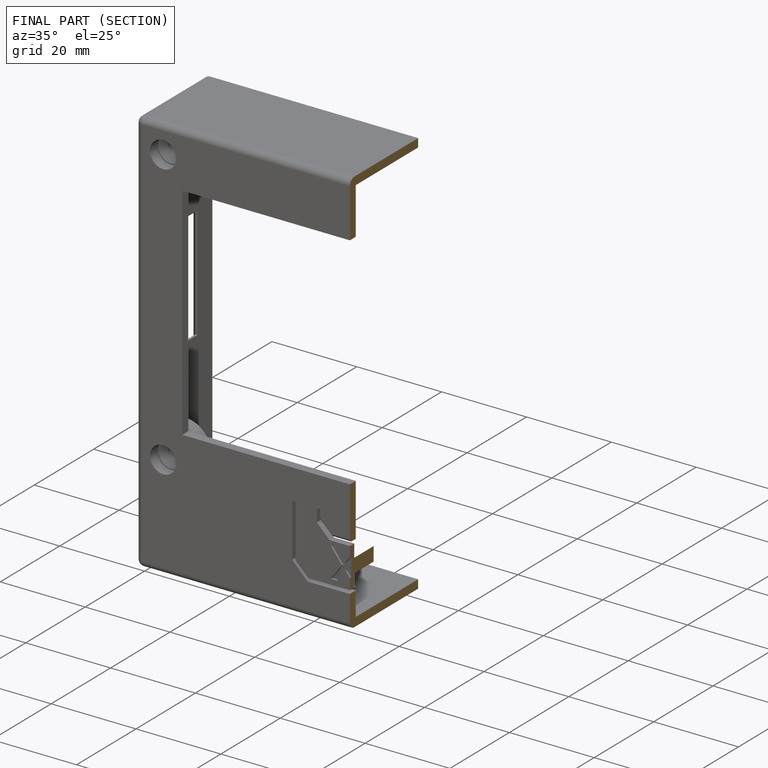
[diagram: finished part — half-section view (interior)]
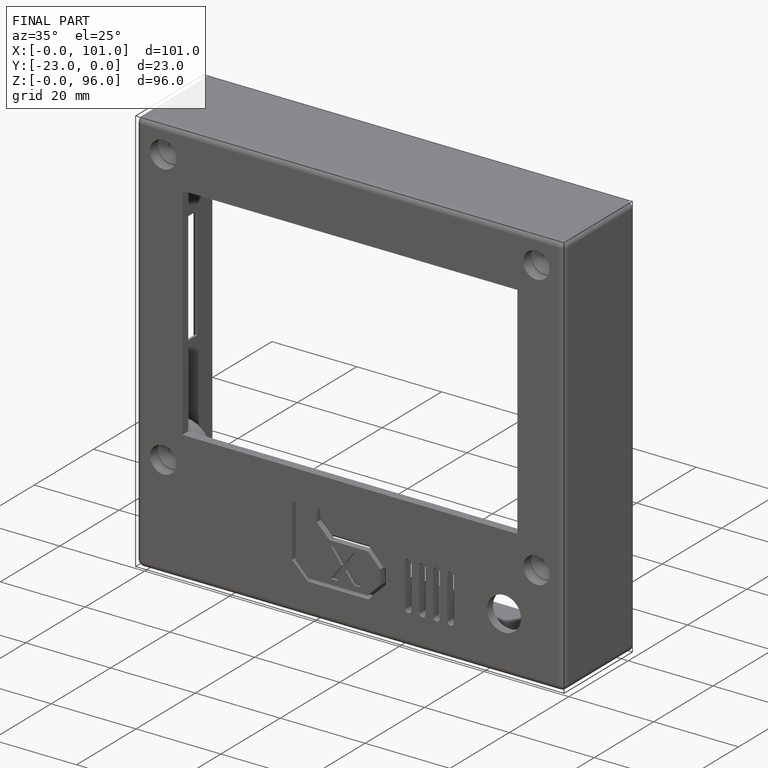
[diagram: finished part — iso view with bounding-box wireframe]
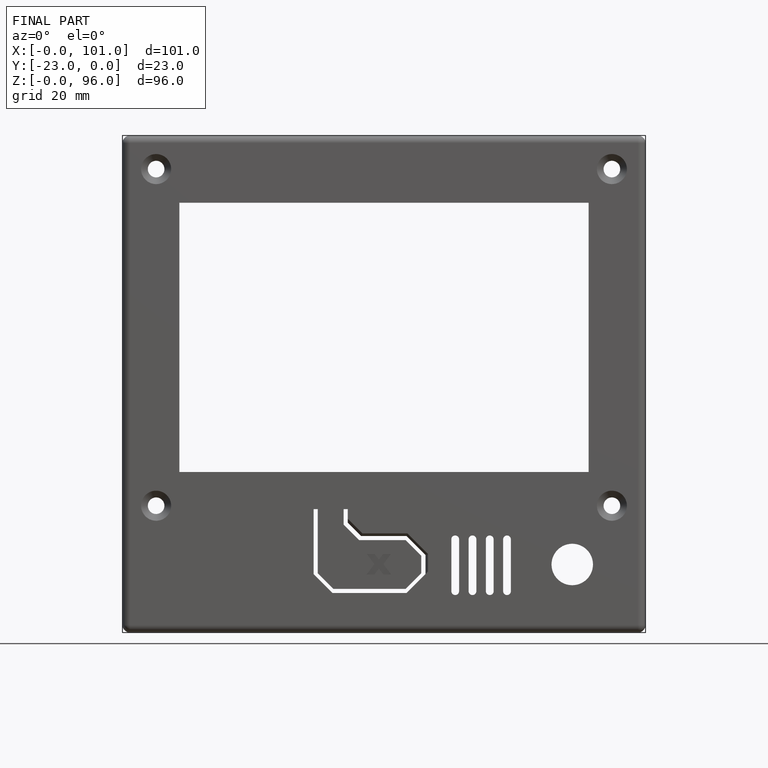
[diagram: finished part — front view with bounding-box wireframe]
